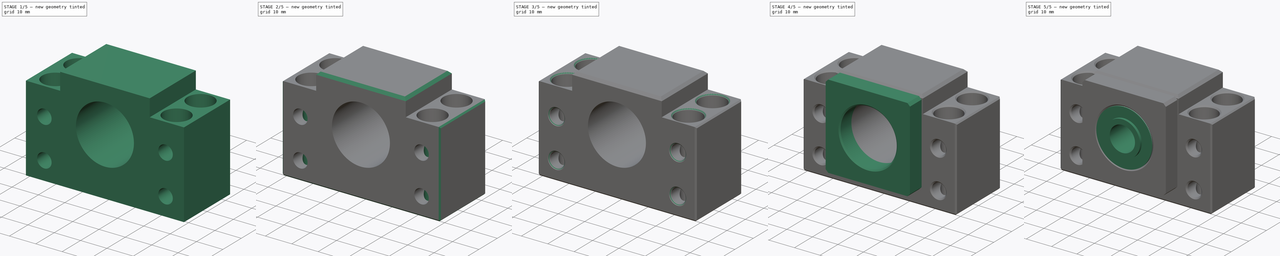
[diagram: build sequence overview — one tinted view per stage of 5, left to right]
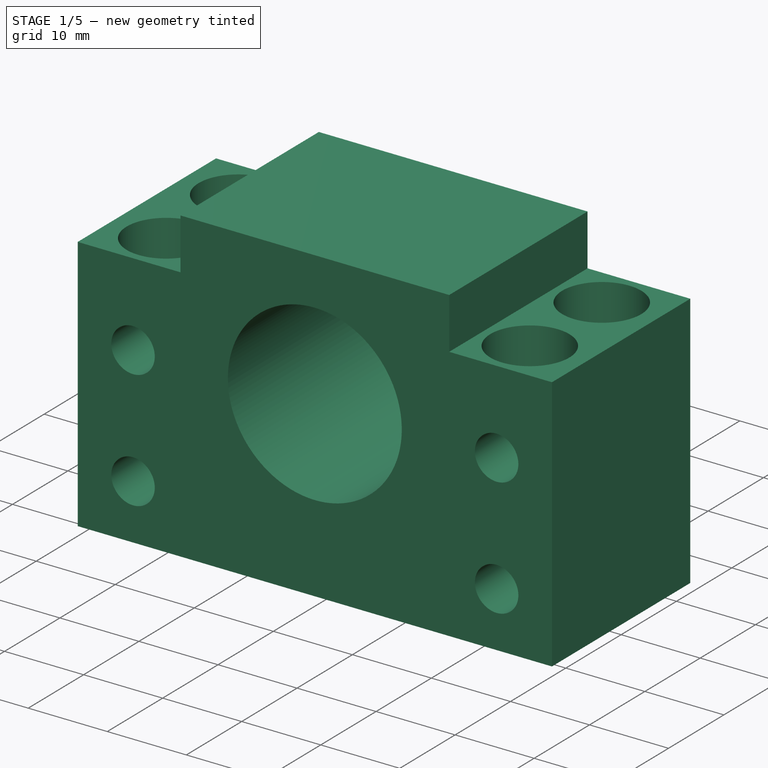
[diagram: stage 1 of 5 — iso view after this stage's code; geometry added in this stage tinted green]
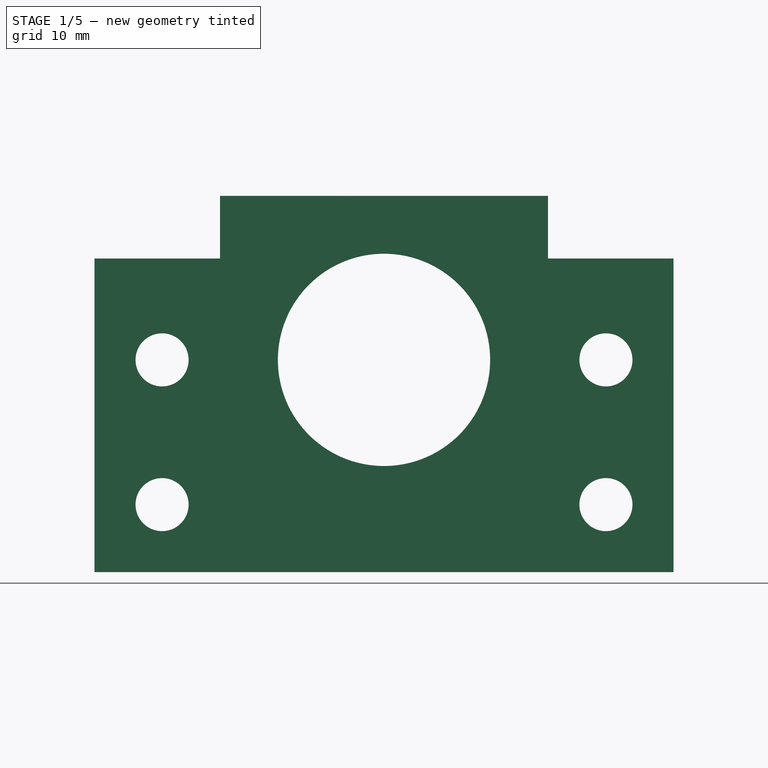
[diagram: stage 1 of 5 — front view after this stage's code; geometry added in this stage tinted green]
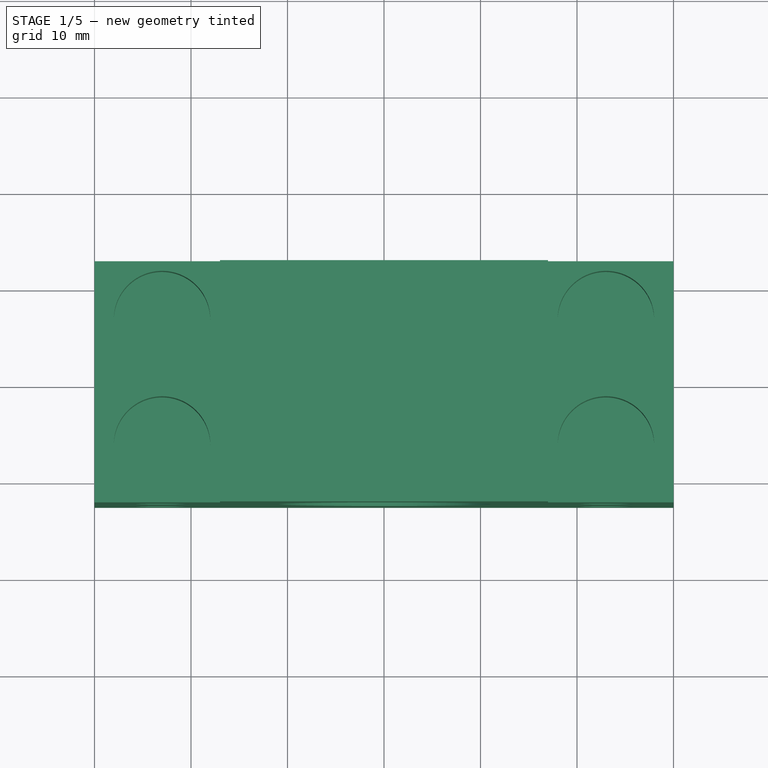
[diagram: stage 1 of 5 — top view after this stage's code; geometry added in this stage tinted green]
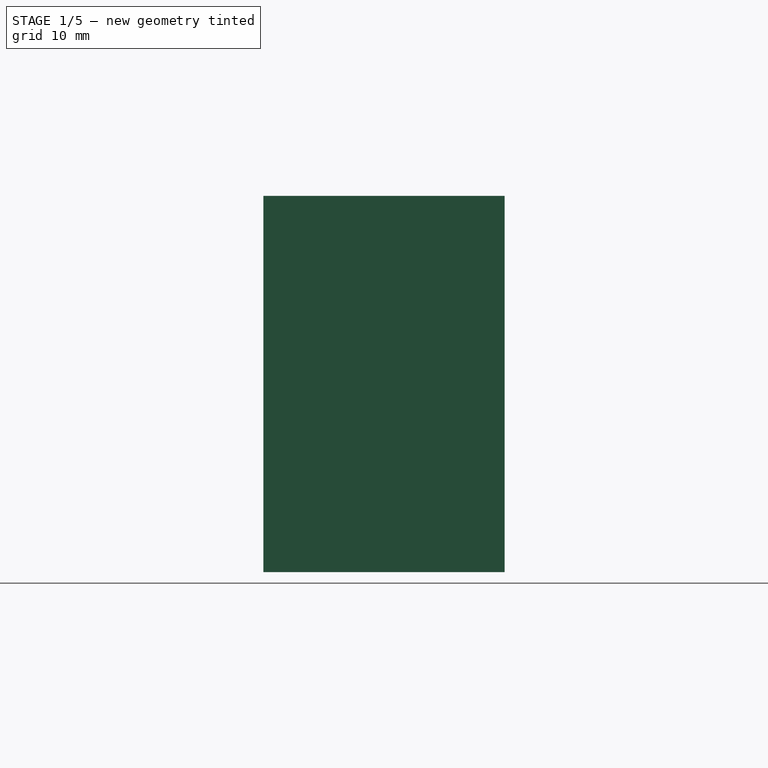
[diagram: stage 1 of 5 — right view after this stage's code; geometry added in this stage tinted green]
FCSTD DOCUMENT  (FreeCAD 0.15R4671 (Git))
Label: bk10
License: All rights reserved
LicenseURL: http://en.wikipedia.org/wiki/All_rights_reserved
objects: PartDesign::Chamfer×8, Sketcher::SketchObject×6, PartDesign::Pocket×3, PartDesign::Pad×2, Part::MultiFuse×2, PartDesign::Revolution×1
note: 28 computed .brp shape members not serialized (recipe doc carries the construction recipe); baked Part::Feature solids carry a one-line shape summary decoded from their .brp

FEATURE [Sketcher::SketchObject] Sketch  label="housing-main-sketch"
  Placement = pos=(0,0,0) rot=(1,0,0;1.5708rad)
  sketch-geometry (9):
    g0: LineSegment StartX=-30 StartY=0 StartZ=0 EndX=-30 EndY=32.5 EndZ=0
    g1: LineSegment StartX=-30 StartY=32.5 StartZ=0 EndX=-17 EndY=32.5 EndZ=0
    g2: LineSegment StartX=-17 StartY=32.5 StartZ=0 EndX=-17 EndY=39 EndZ=0
    g3: LineSegment StartX=-17 StartY=39 StartZ=0 EndX=17 EndY=39 EndZ=0
    g4: LineSegment StartX=17 StartY=39 StartZ=0 EndX=17 EndY=32.5 EndZ=0
    g5: LineSegment StartX=17 StartY=32.5 StartZ=0 EndX=30 EndY=32.5 EndZ=0
    g6: LineSegment StartX=30 StartY=32.5 StartZ=0 EndX=30 EndY=0 EndZ=0
    g7: LineSegment StartX=30 StartY=0 StartZ=0 EndX=-30 EndY=0 EndZ=0
    g8: Circle CenterX=0 CenterY=22 CenterZ=0 NormalX=0 NormalY=0 NormalZ=1 Radius=11
  constraints (27):
    c: PointOnObject(g0,g-1)
    c: Vertical(g0)
    c: Coincident(g0,g1)
    c: Horizontal(g1)
    c: Coincident(g1,g2)
    c: Vertical(g2)
    c: Coincident(g2,g3)
    c: Horizontal(g3)
    c: Coincident(g3,g4)
    c: Vertical(g4)
    c: Coincident(g4,g5)
    c: Horizontal(g5)
    c: Coincident(g5,g6)
    c: Vertical(g6)
    c: Coincident(g6,g7)
    c: Coincident(g7,g0)
    c: Horizontal(g7)
    c: Symmetric(g3,g2,g-2)
    c: Symmetric(g6,g0,g-2)
    c: DistanceX(g0,g6) = 60
    c: DistanceY(g3,g6) = -39
    c: DistanceY(g5,g6) = -32.5
    c: PointOnObject(g8,g-2)
    c: DistanceY(g-1,g8) = 22
    c: Radius(g8) = 11
    c: PointOnObject(g1,g5)
    c: DistanceX(g2,g3) = 34
FEATURE [PartDesign::Pad] Pad  label="housing-main"
  Length = 25
  Length2 = 100
  Midplane = true
  Placement = pos=(0,0,0) rot=(1,0,0;1.5708rad)
  Sketch = -> Sketch
  Type = 0
FEATURE [Sketcher::SketchObject] Sketch001  label="housing-holes-h-sketch"
  Placement = pos=(0,-12.5,0) rot=(1,0,0;1.5708rad)
  Support = -> Pad [Face11]
  sketch-geometry (8):
    g0: LineSegment [constr] StartX=-23 StartY=22 StartZ=0 EndX=23 EndY=22 EndZ=0
    g1: LineSegment [constr] StartX=23 StartY=22 StartZ=0 EndX=23 EndY=7 EndZ=0
    g2: LineSegment [constr] StartX=23 StartY=7 StartZ=0 EndX=-23 EndY=7 EndZ=0
    g3: LineSegment [constr] StartX=-23 StartY=7 StartZ=0 EndX=-23 EndY=22 EndZ=0
    g4: Circle CenterX=-23 CenterY=22 CenterZ=0 NormalX=0 NormalY=0 NormalZ=1 Radius=2.75
    g5: Circle CenterX=23 CenterY=22 CenterZ=0 NormalX=0 NormalY=0 NormalZ=1 Radius=2.75
    g6: Circle CenterX=-23 CenterY=7 CenterZ=0 NormalX=0 NormalY=0 NormalZ=1 Radius=2.75
    g7: Circle CenterX=23 CenterY=7 CenterZ=0 NormalX=0 NormalY=0 NormalZ=1 Radius=2.75
  constraints (20):
    c: Coincident(g0,g1)
    c: Coincident(g1,g2)
    c: Coincident(g2,g3)
    c: Coincident(g3,g0)
    c: Horizontal(g0)
    c: Horizontal(g2)
    c: Vertical(g1)
    c: Vertical(g3)
    c: DistanceY(g-1,g0) = 22
    c: DistanceY(g0,g2) = -15
    c: Symmetric(g2,g1,g-2)
    c: DistanceX(g2,g1) = 46
    c: Coincident(g4,g0)
    c: Coincident(g5,g0)
    c: Coincident(g6,g2)
    c: Coincident(g7,g1)
    c: Radius(g5) = 2.75
    c: Equal(g5,g7)
    c: Equal(g5,g6)
    c: Equal(g5,g4)
FEATURE [PartDesign::Pocket] Pocket  label="housing-holes-h"
  Length = 5
  Placement = pos=(0,0,0) rot=(1,0,0;1.5708rad)
  Sketch = -> Sketch001
  Type = 1
FEATURE [Sketcher::SketchObject] Sketch002  label="housing-holes-v-top-sketch"
  Placement = pos=(0,0,32.5) rot=(0,0,1;3.14159rad)
  Support = -> Pocket [Face3]
  sketch-geometry (8):
    g0: LineSegment [constr] StartX=-23 StartY=6.5 StartZ=0 EndX=23 EndY=6.5 EndZ=0
    g1: LineSegment [constr] StartX=23 StartY=6.5 StartZ=0 EndX=23 EndY=-6.5 EndZ=0
    g2: LineSegment [constr] StartX=23 StartY=-6.5 StartZ=0 EndX=-23 EndY=-6.5 EndZ=0
    g3: LineSegment [constr] StartX=-23 StartY=-6.5 StartZ=0 EndX=-23 EndY=6.5 EndZ=0
    g4: Circle CenterX=-23 CenterY=6.5 CenterZ=0 NormalX=0 NormalY=0 NormalZ=1 Radius=5
    g5: Circle CenterX=23 CenterY=6.5 CenterZ=0 NormalX=0 NormalY=0 NormalZ=1 Radius=5
    g6: Circle CenterX=-23 CenterY=-6.5 CenterZ=0 NormalX=0 NormalY=0 NormalZ=1 Radius=5
    g7: Circle CenterX=23 CenterY=-6.5 CenterZ=0 NormalX=0 NormalY=0 NormalZ=1 Radius=5
  constraints (20):
    c: Coincident(g0,g1)
    c: Coincident(g1,g2)
    c: Coincident(g2,g3)
    c: Coincident(g3,g0)
    c: Horizontal(g0)
    c: Horizontal(g2)
    c: Vertical(g1)
    c: Vertical(g3)
    c: Symmetric(g2,g1,g-2)
    c: DistanceX(g2,g1) = 46
    c: Symmetric(g2,g0,g-1)
    c: DistanceY(g0,g2) = -13
    c: Coincident(g4,g0)
    c: Coincident(g5,g0)
    c: Coincident(g6,g2)
    c: Radius(g7) = 5
    c: Equal(g7,g5)
    c: Equal(g7,g4)
    c: Equal(g7,g6)
    c: Coincident(g7,g1)
FEATURE [PartDesign::Pocket] Pocket001  label="housing-holes-v-top"
  Length = 7
  Placement = pos=(0,0,0) rot=(1,0,0;1.5708rad)
  Sketch = -> Sketch002
  Type = 0
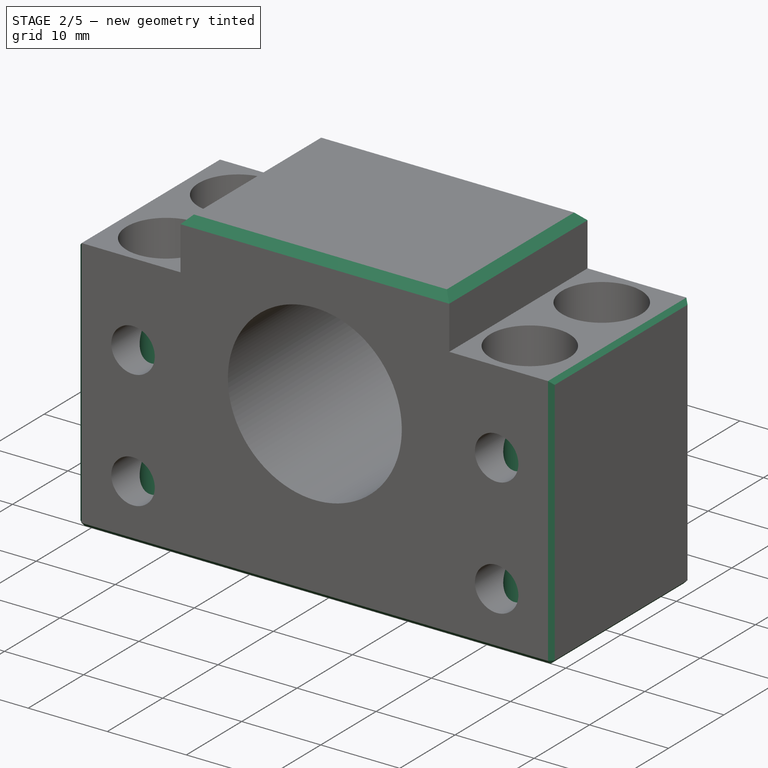
[diagram: stage 2 of 5 — iso view after this stage's code; geometry added in this stage tinted green]
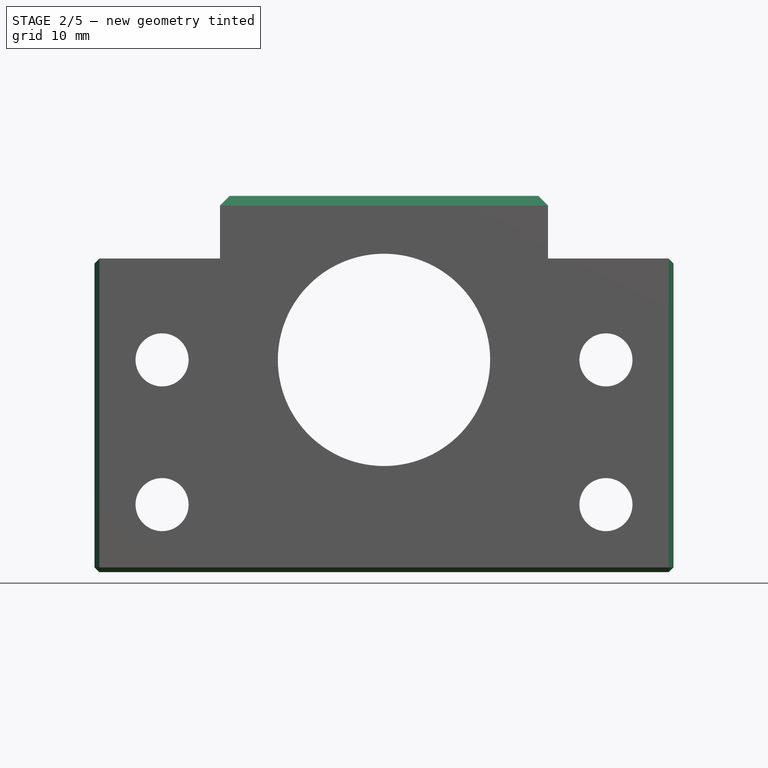
[diagram: stage 2 of 5 — front view after this stage's code; geometry added in this stage tinted green]
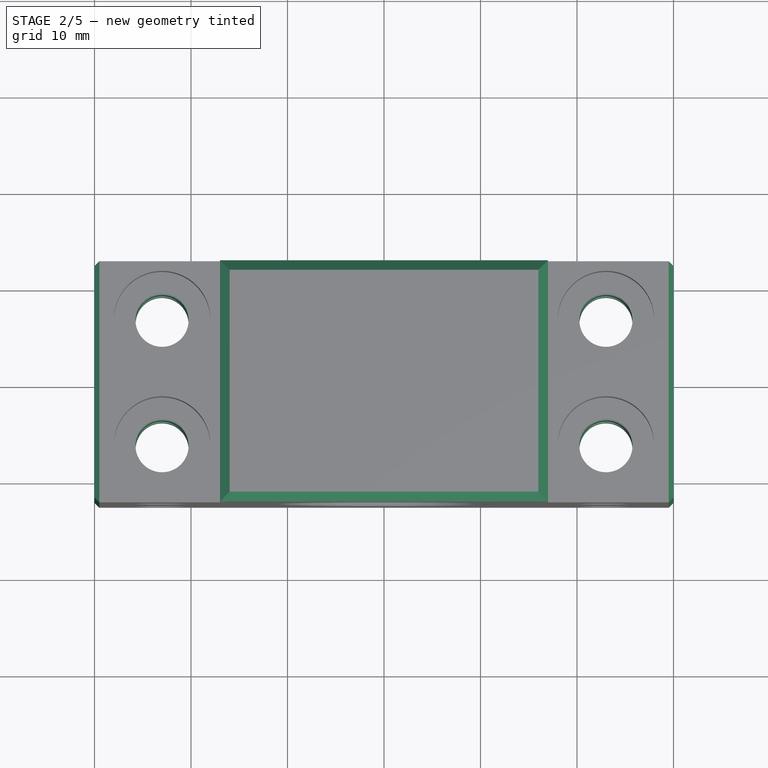
[diagram: stage 2 of 5 — top view after this stage's code; geometry added in this stage tinted green]
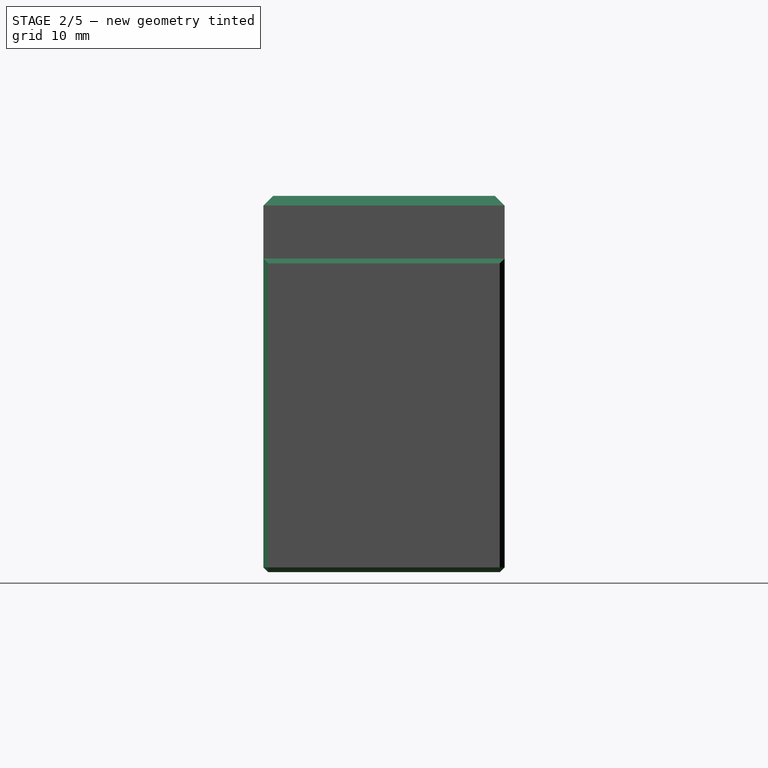
[diagram: stage 2 of 5 — right view after this stage's code; geometry added in this stage tinted green]
FEATURE [Sketcher::SketchObject] Sketch003  label="housing-holes-v-bottom-sketch"
  Placement = pos=(0,0,0) rot=(1,0,0;3.14159rad)
  Support = -> Pocket001 [Face2]
  sketch-geometry (8):
    g0: LineSegment [constr] StartX=-23 StartY=6.5 StartZ=0 EndX=23 EndY=6.5 EndZ=0
    g1: LineSegment [constr] StartX=23 StartY=6.5 StartZ=0 EndX=23 EndY=-6.5 EndZ=0
    g2: LineSegment [constr] StartX=23 StartY=-6.5 StartZ=0 EndX=-23 EndY=-6.5 EndZ=0
    g3: LineSegment [constr] StartX=-23 StartY=-6.5 StartZ=0 EndX=-23 EndY=6.5 EndZ=0
    g4: Circle CenterX=-23 CenterY=6.5 CenterZ=0 NormalX=0 NormalY=0 NormalZ=1 Radius=2.75
    g5: Circle CenterX=23 CenterY=6.5 CenterZ=0 NormalX=0 NormalY=0 NormalZ=1 Radius=2.75
    g6: Circle CenterX=-23 CenterY=-6.5 CenterZ=0 NormalX=0 NormalY=0 NormalZ=1 Radius=2.75
    g7: Circle CenterX=23 CenterY=-6.5 CenterZ=0 NormalX=0 NormalY=0 NormalZ=1 Radius=2.75
  constraints (20):
    c: Coincident(g0,g1)
    c: Coincident(g1,g2)
    c: Coincident(g2,g3)
    c: Coincident(g3,g0)
    c: Horizontal(g0)
    c: Horizontal(g2)
    c: Vertical(g1)
    c: Vertical(g3)
    c: Symmetric(g2,g1,g-2)
    c: DistanceX(g2,g1) = 46
    c: Symmetric(g2,g0,g-1)
    c: DistanceY(g0,g2) = -13
    c: Coincident(g4,g0)
    c: Coincident(g5,g0)
    c: Coincident(g6,g2)
    c: Radius(g7) = 2.75
    c: Equal(g7,g5)
    c: Equal(g7,g4)
    c: Equal(g7,g6)
    c: Coincident(g7,g1)
FEATURE [PartDesign::Pocket] Pocket002  label="housing-holes-v-bottom"
  Length = 5
  Placement = pos=(0,0,0) rot=(1,0,0;1.5708rad)
  Sketch = -> Sketch003
  Type = 1
FEATURE [PartDesign::Chamfer] Chamfer  label="housing-chamfer-top"
  Base = -> Pocket002 [Edge62,Edge20,Edge54,Edge30]
  Placement = pos=(0,0,0) rot=(1,0,0;1.5708rad)
  Size = 1
FEATURE [PartDesign::Chamfer] Chamfer005  label="housing-chamfer"
  Base = -> Chamfer [Edge39,Edge30,Edge8,Edge33,Edge34,Edge7,Edge27,Edge28,Edge5,Edge20]
  Placement = pos=(0,0,0) rot=(1,0,0;1.5708rad)
  Size = 0.5
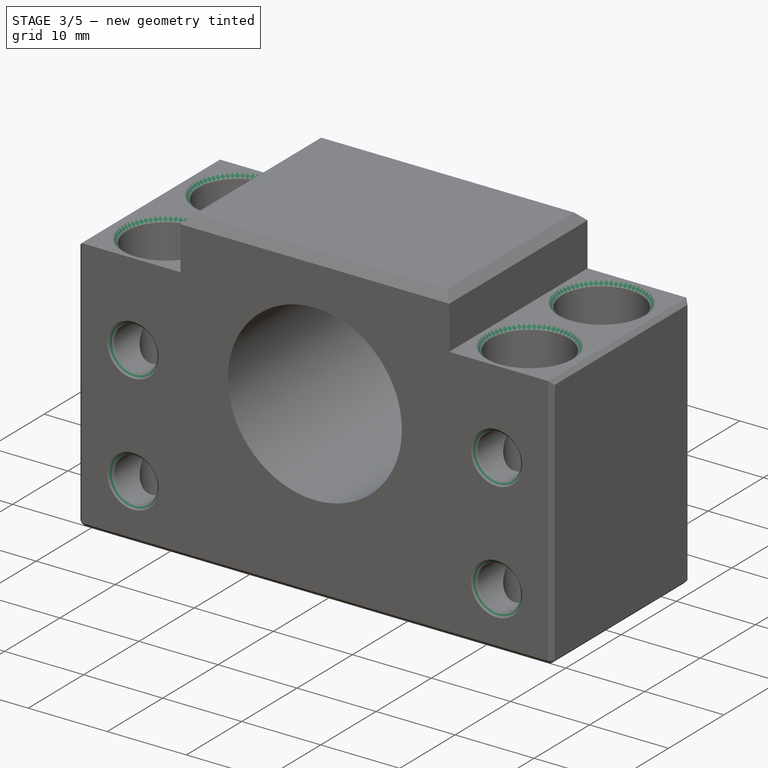
[diagram: stage 3 of 5 — iso view after this stage's code; geometry added in this stage tinted green]
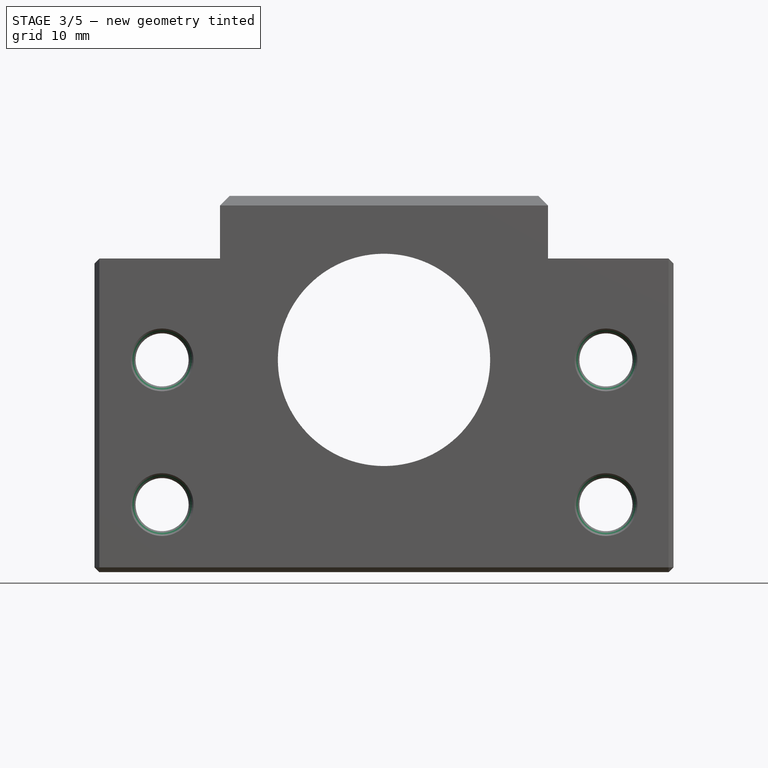
[diagram: stage 3 of 5 — front view after this stage's code; geometry added in this stage tinted green]
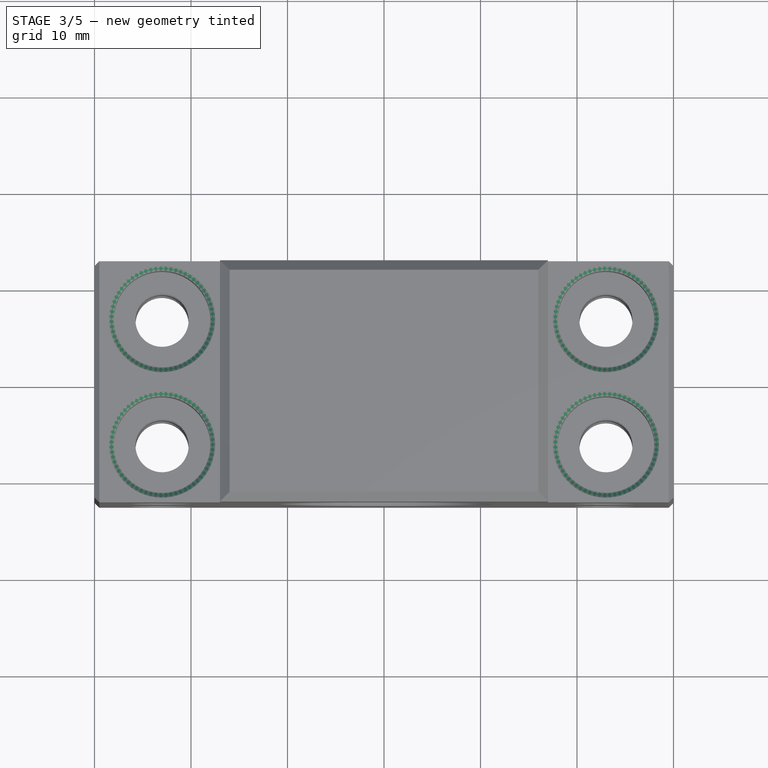
[diagram: stage 3 of 5 — top view after this stage's code; geometry added in this stage tinted green]
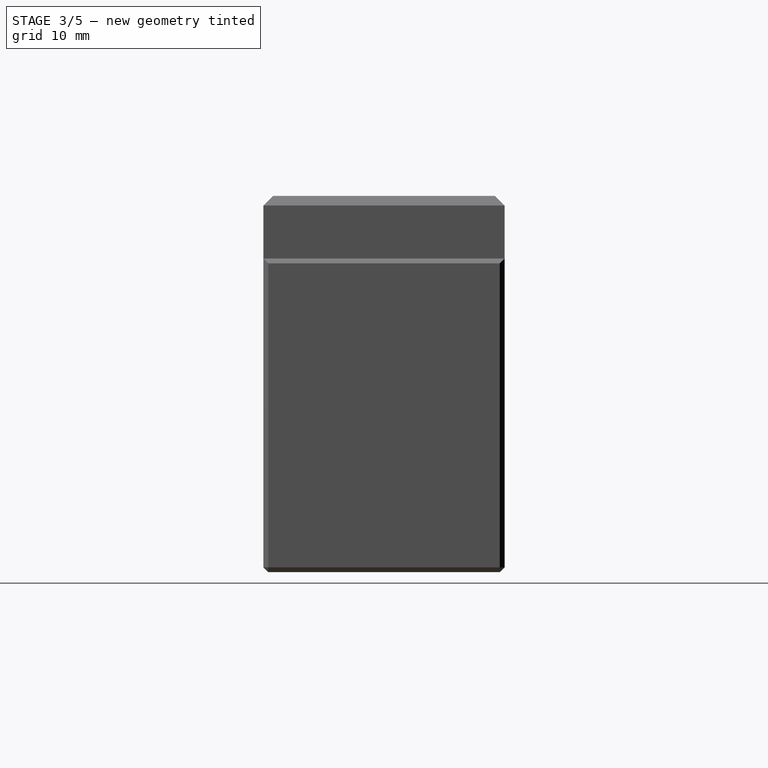
[diagram: stage 3 of 5 — right view after this stage's code; geometry added in this stage tinted green]
FEATURE [PartDesign::Chamfer] Chamfer006  label="housing-holes-v-top-chamfer"
  Base = -> Chamfer005 [Edge17,Edge18,Edge38,Edge39]
  Placement = pos=(0,0,0) rot=(1,0,0;1.5708rad)
  Size = 0.5
FEATURE [PartDesign::Chamfer] Chamfer007  label="housing-holes-v-bottom-chamfer"
  Base = -> Chamfer006 [Edge110,Edge111,Edge113,Edge112]
  Placement = pos=(0,0,0) rot=(1,0,0;1.5708rad)
  Size = 0.5
FEATURE [PartDesign::Chamfer] Chamfer008  label="housing-holes-h-chamfer"
  Base = -> Chamfer007 [Edge62,Edge60,Edge58,Edge59,Edge48,Edge49,Edge46,Edge45]
  Placement = pos=(0,0,0) rot=(1,0,0;1.5708rad)
  Size = 0.5
FEATURE [PartDesign::Chamfer] Chamfer009  label="housing-bearing-hole-chamfer"
  Base = -> Chamfer008 [Edge10]
  Placement = pos=(0,0,0) rot=(1,0,0;1.5708rad)
  Size = 0.5
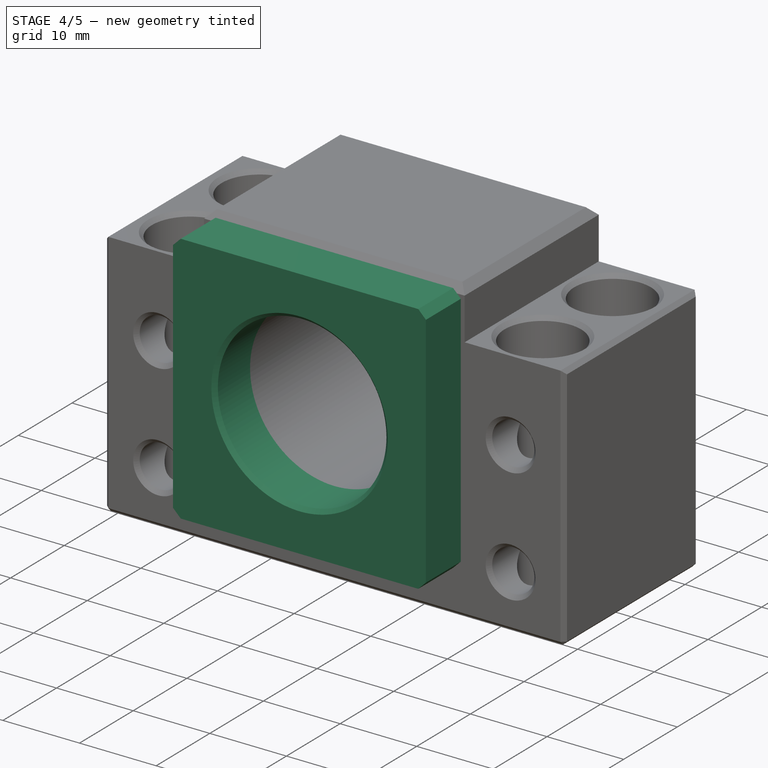
[diagram: stage 4 of 5 — iso view after this stage's code; geometry added in this stage tinted green]
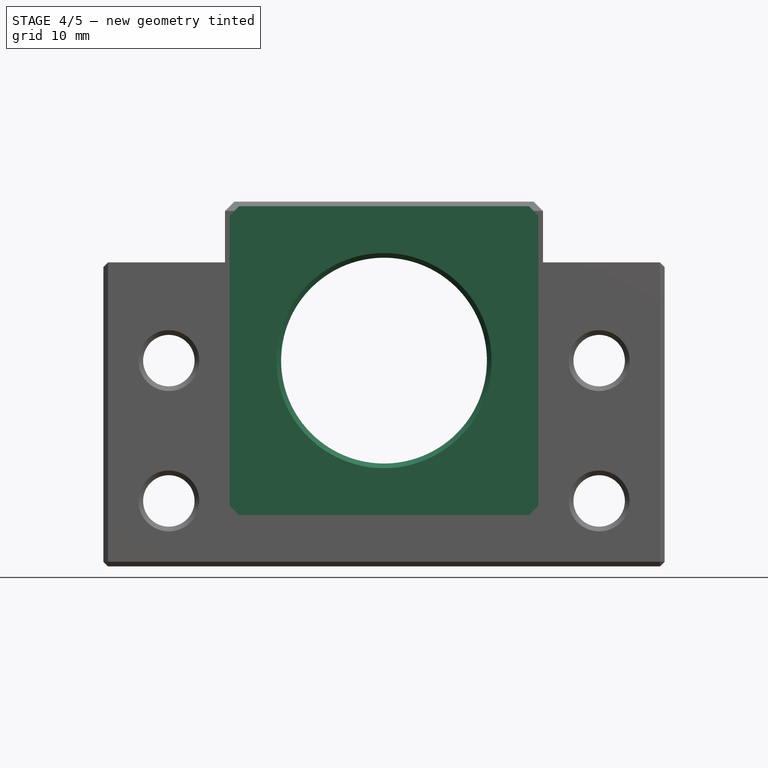
[diagram: stage 4 of 5 — front view after this stage's code; geometry added in this stage tinted green]
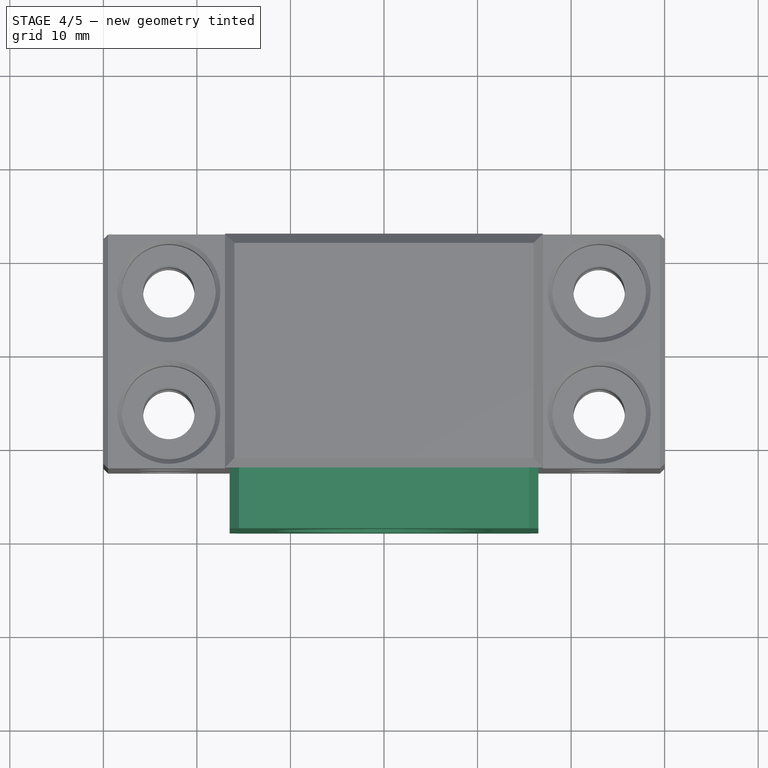
[diagram: stage 4 of 5 — top view after this stage's code; geometry added in this stage tinted green]
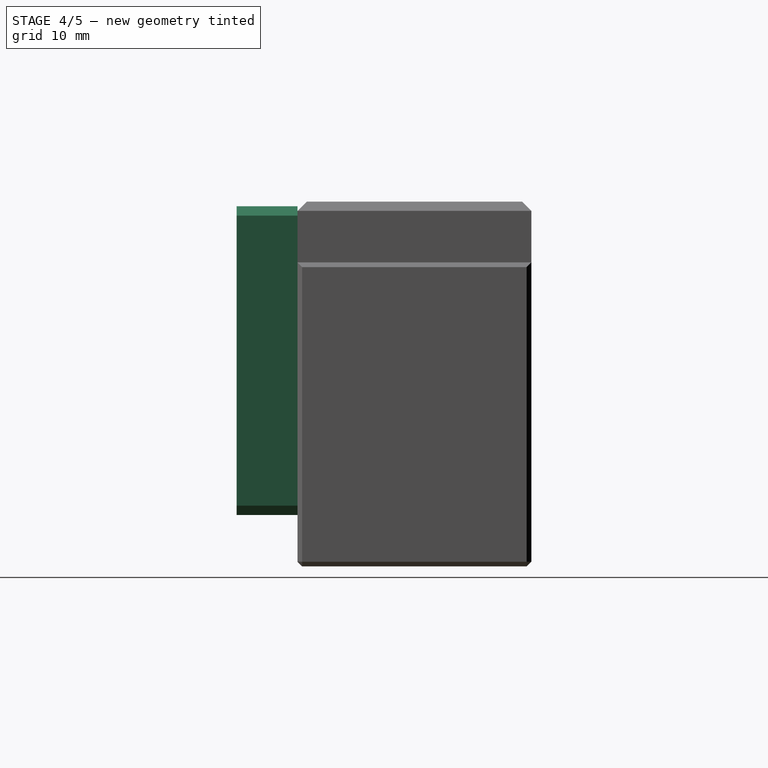
[diagram: stage 4 of 5 — right view after this stage's code; geometry added in this stage tinted green]
FEATURE [Sketcher::SketchObject] Sketch004  label="lid-sketch"
  Placement = pos=(0,-12.5,0) rot=(1,0,0;1.5708rad)
  sketch-geometry (5):
    g0: Circle CenterX=0 CenterY=22 CenterZ=0 NormalX=0 NormalY=0 NormalZ=1 Radius=11
    g1: LineSegment StartX=-16.5 StartY=38.5 StartZ=0 EndX=16.5 EndY=38.5 EndZ=0
    g2: LineSegment StartX=16.5 StartY=38.5 StartZ=0 EndX=16.5 EndY=5.5 EndZ=0
    g3: LineSegment StartX=16.5 StartY=5.5 StartZ=0 EndX=-16.5 EndY=5.5 EndZ=0
    g4: LineSegment StartX=-16.5 StartY=5.5 StartZ=0 EndX=-16.5 EndY=38.5 EndZ=0
  constraints (14):
    c: PointOnObject(g0,g-2)
    c: Radius(g0) = 11
    c: DistanceY(g-1,g0) = 22
    c: Coincident(g1,g2)
    c: Coincident(g2,g3)
    c: Coincident(g3,g4)
    c: Coincident(g4,g1)
    c: Horizontal(g1)
    c: Horizontal(g3)
    c: Vertical(g2)
    c: Vertical(g4)
    c: Symmetric(g1,g2,g0)
    c: Equal(g1,g2)
    c: DistanceY(g1,g2) = -33
FEATURE [PartDesign::Pad] Pad001  label="lid"
  Length = 6.5
  Length2 = 100
  Placement = pos=(0,-12.5,0) rot=(1,0,0;1.5708rad)
  Sketch = -> Sketch004
  Type = 0
FEATURE [PartDesign::Chamfer] Chamfer003  label="lid-chamfer"
  Base = -> Pad001 [Edge2,Edge1,Edge8,Edge5]
  Placement = pos=(0,-12.5,0) rot=(1,0,0;1.5708rad)
  Size = 1
FEATURE [PartDesign::Chamfer] Chamfer004  label="lid-bearing-hole-chamfer"
  Base = -> Chamfer003 [Edge22]
  Placement = pos=(0,-12.5,0) rot=(1,0,0;1.5708rad)
  Size = 0.5
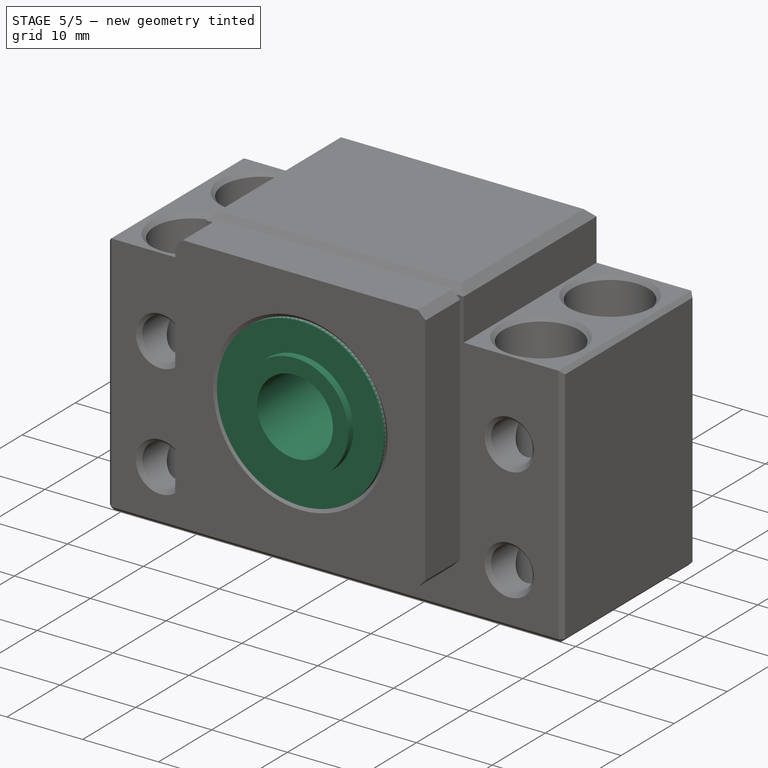
[diagram: stage 5 of 5 — iso view after this stage's code; geometry added in this stage tinted green]
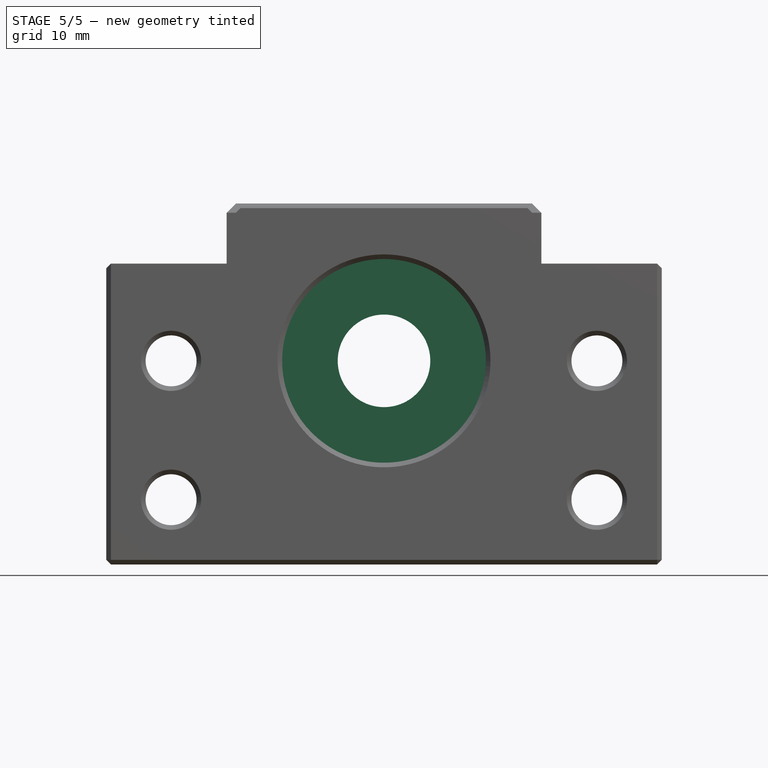
[diagram: stage 5 of 5 — front view after this stage's code; geometry added in this stage tinted green]
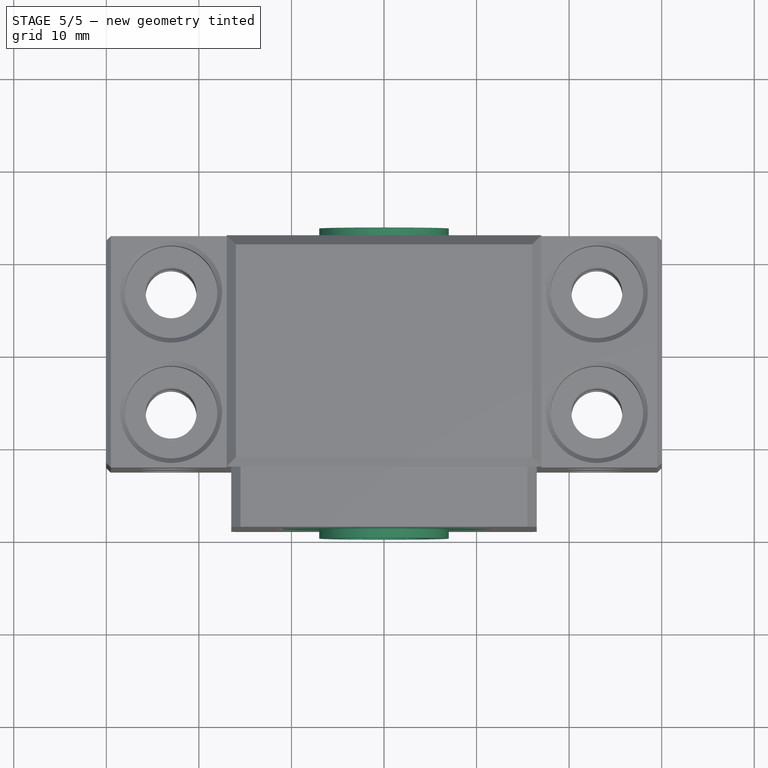
[diagram: stage 5 of 5 — top view after this stage's code; geometry added in this stage tinted green]
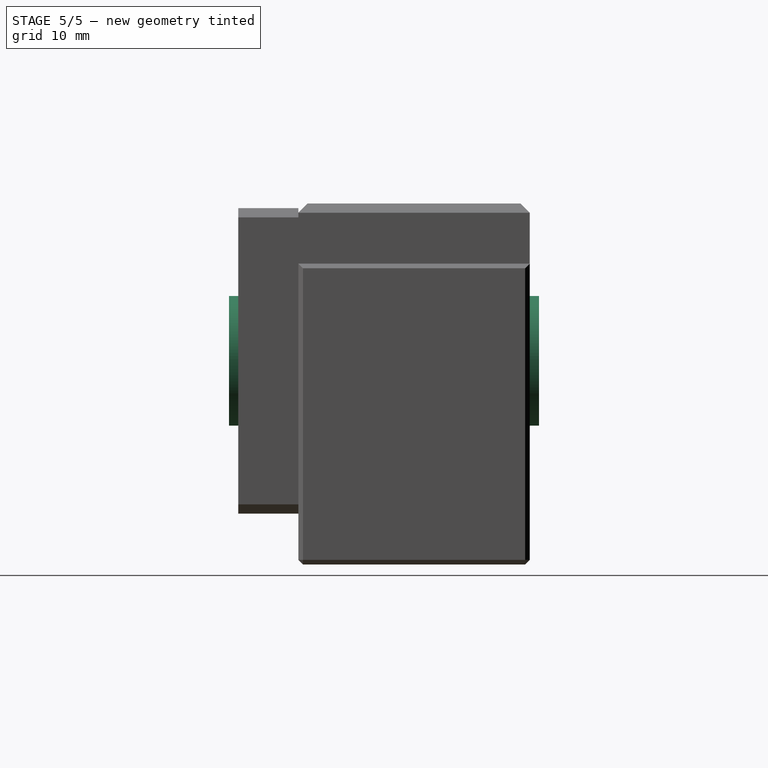
[diagram: stage 5 of 5 — right view after this stage's code; geometry added in this stage tinted green]
FEATURE [Sketcher::SketchObject] Sketch005  label="bearing-sketch"
  Placement = pos=(0,0,0) rot=(0.57735,0.57735,0.57735;2.0944rad)
  sketch-geometry (9):
    g0: LineSegment StartX=-20 StartY=27 StartZ=0 EndX=13.5 EndY=27 EndZ=0
    g1: LineSegment StartX=13.5 StartY=27 StartZ=0 EndX=13.5 EndY=29 EndZ=0
    g2: LineSegment StartX=13.5 StartY=29 StartZ=0 EndX=12.5 EndY=29 EndZ=0
    g3: LineSegment StartX=12.5 StartY=29 StartZ=0 EndX=12.5 EndY=33 EndZ=0
    g4: LineSegment StartX=12.5 StartY=33 StartZ=0 EndX=-19 EndY=33 EndZ=0
    g5: LineSegment StartX=-19 StartY=33 StartZ=0 EndX=-19 EndY=29 EndZ=0
    g6: LineSegment StartX=-19 StartY=29 StartZ=0 EndX=-20 EndY=29 EndZ=0
    g7: LineSegment StartX=-20 StartY=29 StartZ=0 EndX=-20 EndY=27 EndZ=0
    g8: LineSegment [constr] StartX=-30 StartY=22 StartZ=0 EndX=30 EndY=22 EndZ=0
  constraints (29):
    c: Horizontal(g0)
    c: Coincident(g0,g1)
    c: Vertical(g1)
    c: Coincident(g1,g2)
    c: Horizontal(g2)
    c: Coincident(g2,g3)
    c: Vertical(g3)
    c: Coincident(g3,g4)
    c: Horizontal(g4)
    c: Coincident(g4,g5)
    c: Vertical(g5)
    c: Coincident(g5,g6)
    c: Horizontal(g6)
    c: Coincident(g6,g7)
    c: Coincident(g7,g0)
    c: Vertical(g7)
    c: PointOnObject(g2,g6)
    c: Equal(g2,g6)
    c: Equal(g1,g7)
    c: DistanceY(g-1,g0) = 27
    c: DistanceY(g1,g0) = -2
    c: DistanceX(g1,g2) = -1
    c: DistanceY(g4,g0) = -6
    c: Horizontal(g8)
    c: DistanceY(g-1,g8) = 22
    c: Symmetric(g8,g8,g-2)
    c: DistanceX(g8,g8) = -60
    c: DistanceX(g-1,g3) = 12.5
    c: DistanceX(g4,g3) = 31.5
FEATURE [PartDesign::Revolution] Revolution  label="bearing"
  Angle = 360
  Axis = (0,60,0)
  Base = (0,-30,22)
  Placement = pos=(0,0,0) rot=(0.57735,0.57735,0.57735;2.0944rad)
  ReferenceAxis = -> Sketch005 [Axis0]
  Sketch = -> Sketch005
FEATURE [Part::MultiFuse] Fusion  label="housing-lid"
  Shapes = -> [Chamfer004,Chamfer009]
FEATURE [Part::MultiFuse] Fusion001  label="bk10"
  Shapes = -> [Fusion,Revolution]
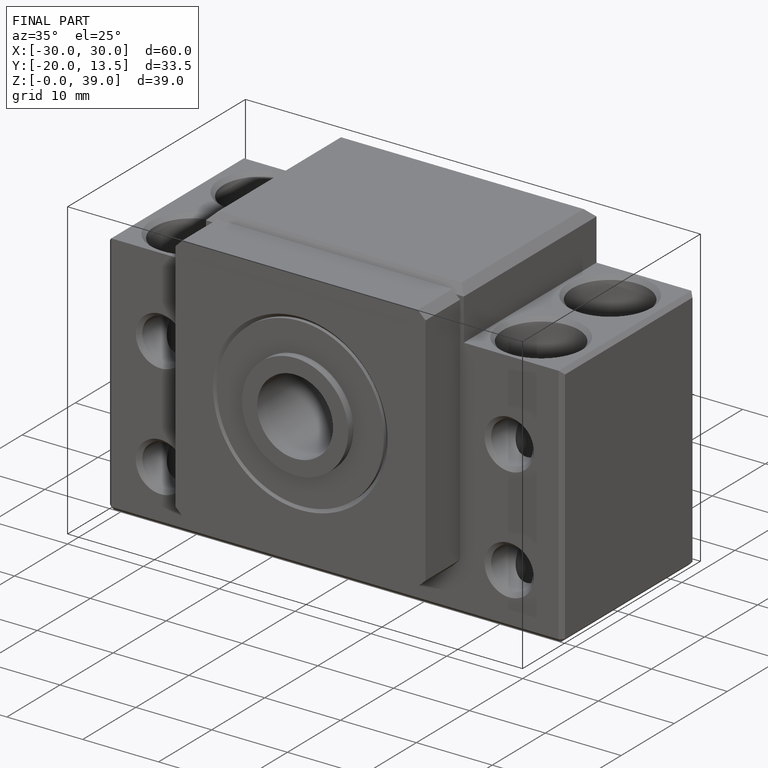
[diagram: finished part — iso view with bounding-box wireframe]
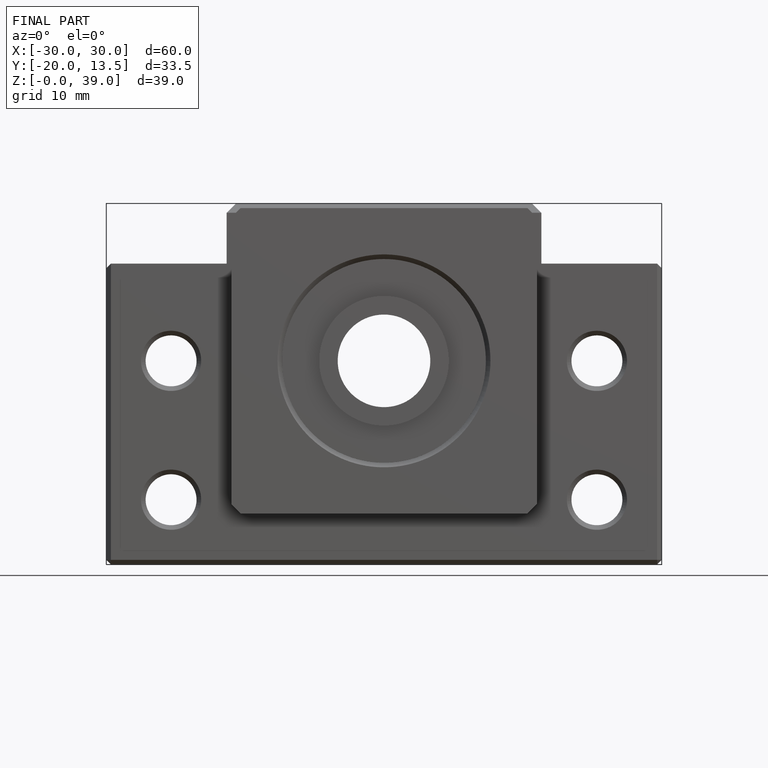
[diagram: finished part — front view with bounding-box wireframe]
